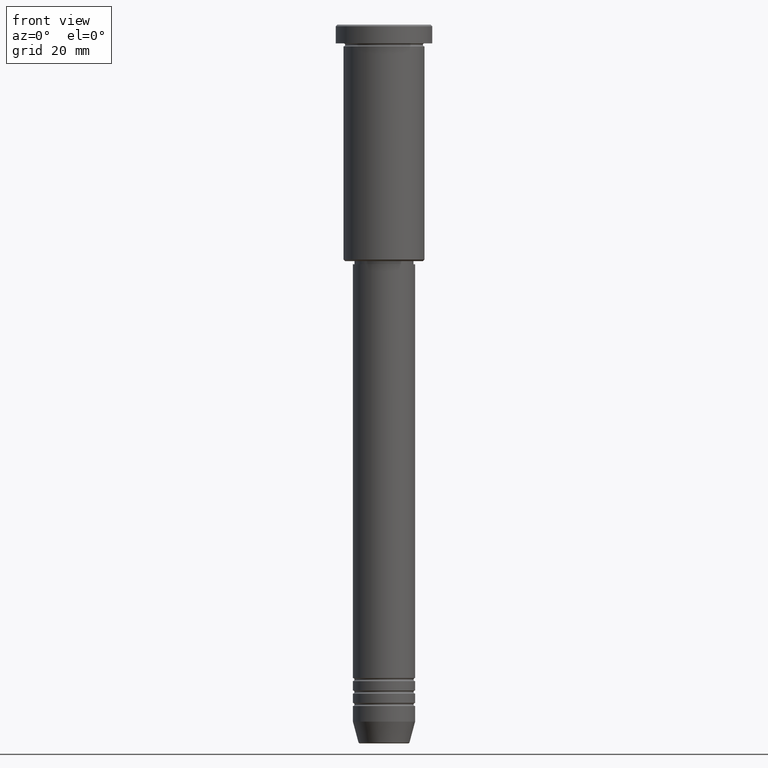
[diagram: clean part render]
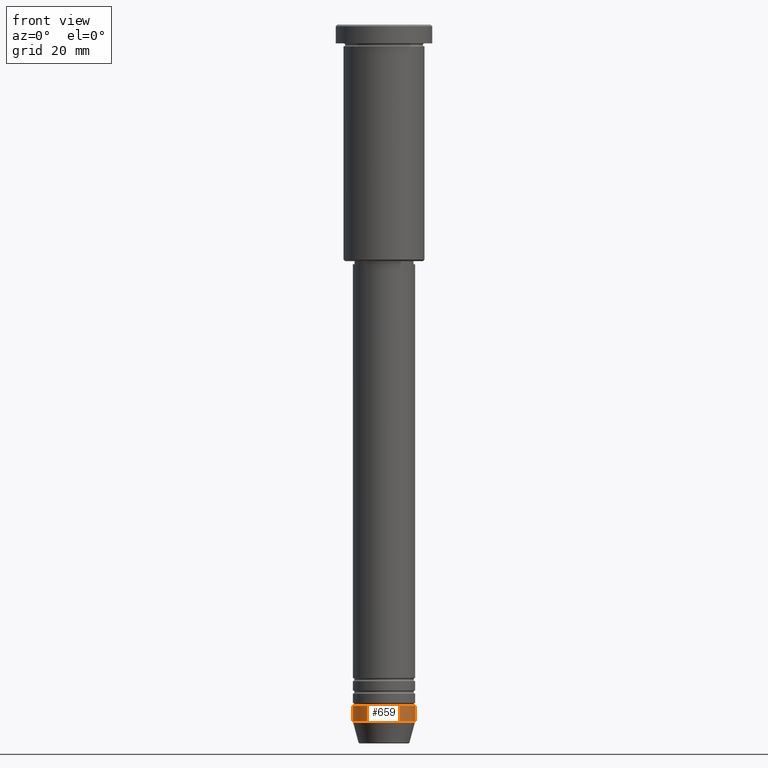
[diagram: same view with one face highlighted and labeled with its STEP entity id]
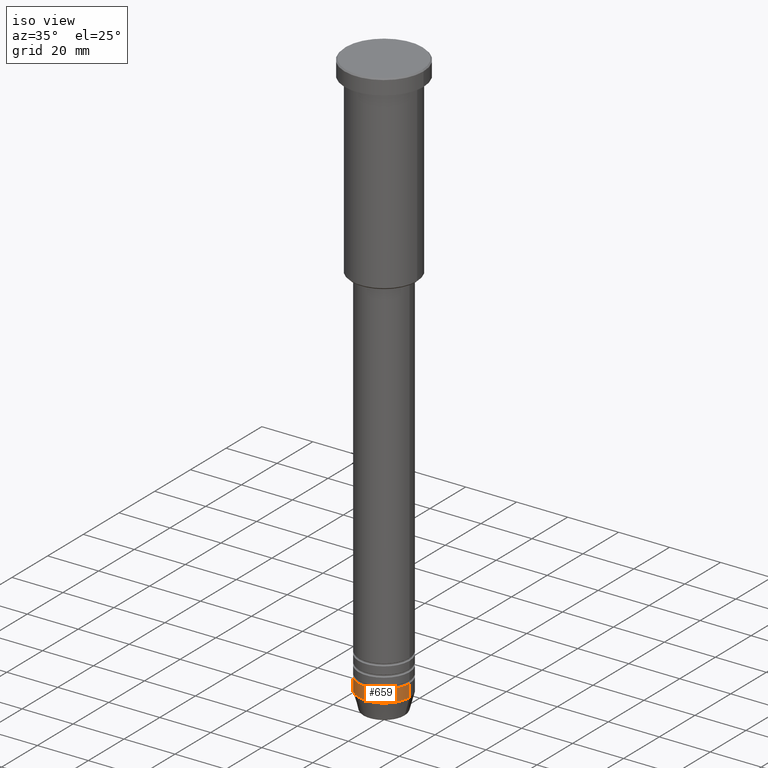
[diagram: same view with one face highlighted and labeled with its STEP entity id]
A machine part, front view. The second image highlights one B-rep face of the part: STEP entity #659.
A second angle (iso view) of the same face is appended — the face is thin or edge-on in the first view.
In plain terms, the highlighted cylindrical surface (edge-blend (fillet) strip) has radius 10 mm, axis along (-0, -0, 1).
Its self-contained STEP definition (entity closure, byte-faithful):
#29 = CIRCLE ( 'NONE', #718, 10.00000000000000000 ) ;
#41 = EDGE_CURVE ( 'NONE', #962, #288, #1115, .T. ) ;
#63 = CARTESIAN_POINT ( 'NONE',  ( 10.00000000000000000, 0.000000000000000000, -223.9999999999999716 ) ) ;
#84 = CARTESIAN_POINT ( 'NONE',  ( 10.00000000000000000, 0.000000000000000000, -219.0000000000000000 ) ) ;
#114 = ORIENTED_EDGE ( 'NONE', *, *, #41, .F. ) ;
#116 = DIRECTION ( 'NONE',  ( -0.000000000000000000, -0.000000000000000000, 1.000000000000000000 ) ) ;
#145 = VECTOR ( 'NONE', #116, 1000.000000000000000 ) ;
#153 = ORIENTED_EDGE ( 'NONE', *, *, #437, .T. ) ;
#173 = AXIS2_PLACEMENT_3D ( 'NONE', #791, #1149, #332 ) ;
#233 = CARTESIAN_POINT ( 'NONE',  ( -10.00000000000000000, 1.224646799147353256E-15, -223.9999999999999716 ) ) ;
#270 = LINE ( 'NONE', #372, #1042 ) ;
#288 = VERTEX_POINT ( 'NONE', #972 ) ;
#294 = EDGE_CURVE ( 'NONE', #288, #740, #29, .T. ) ;
#319 = FACE_OUTER_BOUND ( 'NONE', #981, .T. ) ;
#332 = DIRECTION ( 'NONE',  ( 1.000000000000000000, 0.000000000000000000, 0.000000000000000000 ) ) ;
#333 = EDGE_CURVE ( 'NONE', #962, #668, #443, .T. ) ;
#372 = CARTESIAN_POINT ( 'NONE',  ( 10.00000000000000000, 0.000000000000000000, 0.000000000000000000 ) ) ;
#422 = ORIENTED_EDGE ( 'NONE', *, *, #294, .F. ) ;
#437 = EDGE_CURVE ( 'NONE', #668, #740, #270, .T. ) ;
#440 = CARTESIAN_POINT ( 'NONE',  ( 0.000000000000000000, 0.000000000000000000, -223.9999999999999716 ) ) ;
#443 = CIRCLE ( 'NONE', #1116, 10.00000000000000000 ) ;
#450 = DIRECTION ( 'NONE',  ( 1.000000000000000000, 0.000000000000000000, 0.000000000000000000 ) ) ;
#457 = DIRECTION ( 'NONE',  ( -0.000000000000000000, -0.000000000000000000, 1.000000000000000000 ) ) ;
#539 = ORIENTED_EDGE ( 'NONE', *, *, #333, .T. ) ;
#659 = ADVANCED_FACE ( 'NONE', ( #319 ), #1049, .T. ) ;
#668 = VERTEX_POINT ( 'NONE', #63 ) ;
#718 = AXIS2_PLACEMENT_3D ( 'NONE', #1180, #457, #450 ) ;
#740 = VERTEX_POINT ( 'NONE', #84 ) ;
#791 = CARTESIAN_POINT ( 'NONE',  ( 0.000000000000000000, 0.000000000000000000, 0.000000000000000000 ) ) ;
#815 = DIRECTION ( 'NONE',  ( 1.000000000000000000, 0.000000000000000000, 0.000000000000000000 ) ) ;
#836 = DIRECTION ( 'NONE',  ( -0.000000000000000000, -0.000000000000000000, 1.000000000000000000 ) ) ;
#860 = CARTESIAN_POINT ( 'NONE',  ( -10.00000000000000000, 1.224646799147353256E-15, 0.000000000000000000 ) ) ;
#900 = DIRECTION ( 'NONE',  ( -0.000000000000000000, -0.000000000000000000, 1.000000000000000000 ) ) ;
#962 = VERTEX_POINT ( 'NONE', #233 ) ;
#972 = CARTESIAN_POINT ( 'NONE',  ( -10.00000000000000000, 1.224646799147353256E-15, -219.0000000000000000 ) ) ;
#981 = EDGE_LOOP ( 'NONE', ( #114, #539, #153, #422 ) ) ;
#1042 = VECTOR ( 'NONE', #900, 1000.000000000000000 ) ;
#1049 = CYLINDRICAL_SURFACE ( 'NONE', #173, 10.00000000000000000 ) ;
#1115 = LINE ( 'NONE', #860, #145 ) ;
#1116 = AXIS2_PLACEMENT_3D ( 'NONE', #440, #836, #815 ) ;
#1149 = DIRECTION ( 'NONE',  ( -0.000000000000000000, -0.000000000000000000, 1.000000000000000000 ) ) ;
#1180 = CARTESIAN_POINT ( 'NONE',  ( 0.000000000000000000, 0.000000000000000000, -219.0000000000000000 ) ) ;